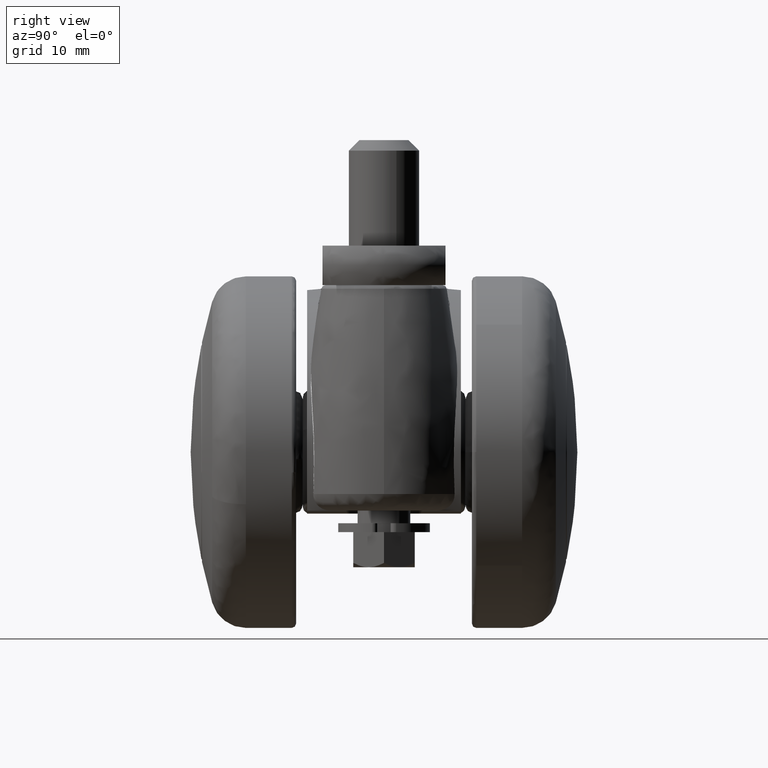
[diagram: clean part render]
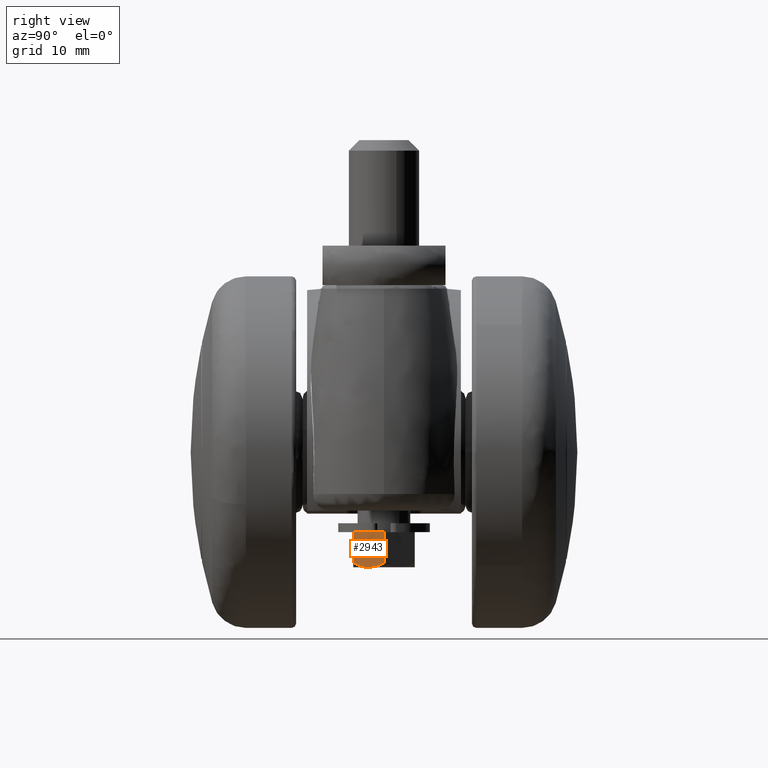
[diagram: same view with one face highlighted and labeled with its STEP entity id]
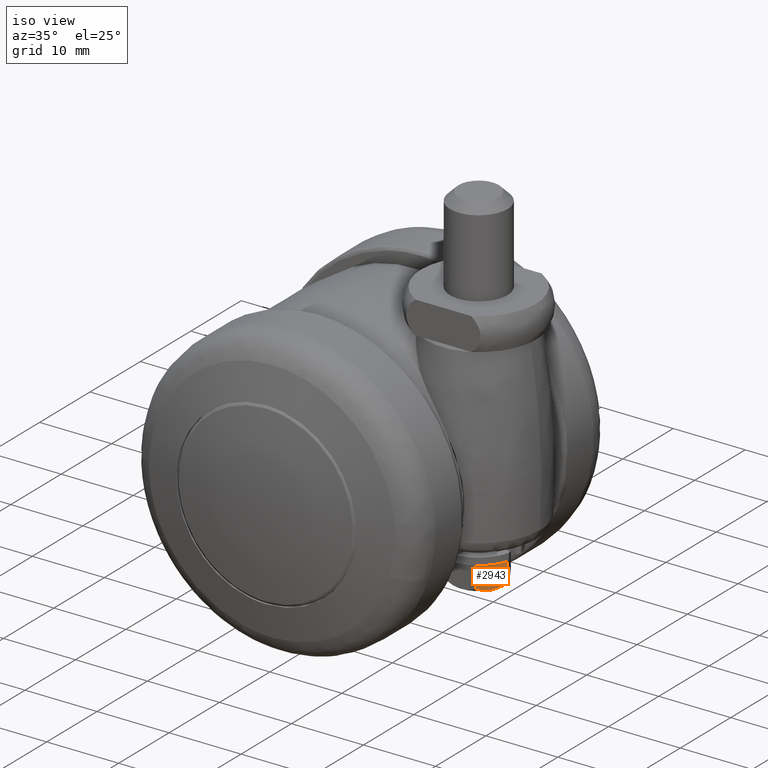
[diagram: same view with one face highlighted and labeled with its STEP entity id]
A machine part, right view. The second image highlights one B-rep face of the part: STEP entity #2943.
A second angle (iso view) of the same face is appended — the face is thin or edge-on in the first view.
In plain terms, the highlighted face is a freeform B-spline surface patch.
Its self-contained STEP definition (entity closure, byte-faithful):
#2513=CARTESIAN_POINT('',(18.031088956622749,-1.750000075131495,-13.100000000000000));
#2514=VERTEX_POINT('',#2513);
#2608=CARTESIAN_POINT('',(17.020726000000000,-3.500000000000000,-12.600000080112780));
#2609=VERTEX_POINT('',#2608);
#2624=CARTESIAN_POINT('',(17.020726000000000,-3.500000000000002,-12.600000080112780));
#2625=CARTESIAN_POINT('',(17.180439441748302,-3.223368212157872,-12.747486312930290));
#2626=CARTESIAN_POINT('',(17.343193984594262,-2.941469082854399,-12.871956210915730));
#2627=CARTESIAN_POINT('',(17.594515470652659,-2.506167512426530,-13.004246591578990));
#2628=CARTESIAN_POINT('',(17.679497903640929,-2.358973624952931,-13.039196158387480));
#2629=CARTESIAN_POINT('',(17.809158382581980,-2.134395094121087,-13.075069661579880));
#2630=CARTESIAN_POINT('',(17.852743053500870,-2.058904231819061,-13.084268721042200));
#2631=CARTESIAN_POINT('',(17.940700122305142,-1.906558124125612,-13.096704990283220));
#2632=CARTESIAN_POINT('',(17.985240112590709,-1.829412600190415,-13.099916904465170));
#2633=CARTESIAN_POINT('',(18.029922843816738,-1.752019841701092,-13.099999392500420));
#2634=CARTESIAN_POINT('',(18.030505923939032,-1.751009917333295,-13.099999923874771));
#2635=CARTESIAN_POINT('',(18.031088956622749,-1.750000075131495,-13.100000000000000));
#2636=B_SPLINE_CURVE_WITH_KNOTS('',3,(#2624,#2625,#2626,#2627,#2628,#2629,#2630,#2631,#2632,#2633,#2634,#2635),.UNSPECIFIED.,.F.,.U.,(4,2,2,2,2,4),(0.0,0.249999999999999,0.374999999999999,0.437499999999999,0.499999999999999,0.500826435451051),.UNSPECIFIED.);
#2637=EDGE_CURVE('',#2609,#2514,#2636,.T.);
#2656=CARTESIAN_POINT('',(19.041451999999900,-3.071924E-015,-12.600000000000000));
#2657=VERTEX_POINT('',#2656);
#2658=CARTESIAN_POINT('',(18.031088956622749,-1.750000075131495,-13.100000000000000));
#2659=CARTESIAN_POINT('',(18.206875615622700,-1.445528659165259,-13.099995888632460));
#2660=CARTESIAN_POINT('',(18.378348431460001,-1.148529038518740,-13.050474723980770));
#2661=CARTESIAN_POINT('',(18.630842964571180,-0.711195691053917,-12.918728452937790));
#2662=CARTESIAN_POINT('',(18.714408489217359,-0.566455960748259,-12.865177797755170));
#2663=CARTESIAN_POINT('',(18.879998418326501,-0.279645798518435,-12.742531339871141));
#2664=CARTESIAN_POINT('',(18.961297714491099,-0.138831290972090,-12.674017905104151));
#2665=CARTESIAN_POINT('',(19.041451999999900,-3.071924E-015,-12.600000000000000));
#2666=B_SPLINE_CURVE_WITH_KNOTS('',3,(#2658,#2659,#2660,#2661,#2662,#2663,#2664,#2665),.UNSPECIFIED.,.F.,.U.,(4,2,2,4),(0.500826434378236,0.749999999999999,0.874999999999999,1.0),.UNSPECIFIED.);
#2667=EDGE_CURVE('',#2514,#2657,#2666,.T.);
#2889=CARTESIAN_POINT('',(19.041451999999900,0.0,-9.100000000000000));
#2890=VERTEX_POINT('',#2889);
#2891=CARTESIAN_POINT('',(19.041451999999900,0.0,-9.100000000000000));
#2892=CARTESIAN_POINT('',(19.041451999999900,-3.071924E-015,-12.600000000000000));
#2893=QUASI_UNIFORM_CURVE('',1,(#2891,#2892),.UNSPECIFIED.,.F.,.U.);
#2894=EDGE_CURVE('',#2890,#2657,#2893,.T.);
#2914=CARTESIAN_POINT('',(19.142387380817571,0.174825202853751,-13.299800376706131));
#2915=CARTESIAN_POINT('',(16.919790528848839,-3.674825359315950,-13.299800376706131));
#2916=CARTESIAN_POINT('',(19.142387380817581,0.174825202853751,-8.900200481600759));
#2917=CARTESIAN_POINT('',(16.919790528848839,-3.674825359315950,-8.900200481600759));
#2918=B_SPLINE_SURFACE_WITH_KNOTS('',1,1,((#2914,#2916),(#2915,#2917)),.UNSPECIFIED.,.F.,.F.,.U.,(2,2),(2,2),(0.0,4.445193608516374),(0.0,4.399599895105366),.UNSPECIFIED.);
#2919=CARTESIAN_POINT('',(17.020726000000000,-3.500000000000000,-9.100000000000000));
#2920=VERTEX_POINT('',#2919);
#2921=CARTESIAN_POINT('',(17.020726000000000,-3.500000000000000,-9.100000000000000));
#2922=CARTESIAN_POINT('',(17.020726000000000,-3.500000000000000,-12.600000080112780));
#2923=QUASI_UNIFORM_CURVE('',1,(#2921,#2922),.UNSPECIFIED.,.F.,.U.);
#2924=EDGE_CURVE('',#2920,#2609,#2923,.T.);
#2925=ORIENTED_EDGE('',*,*,#2924,.T.);
#2926=ORIENTED_EDGE('',*,*,#2637,.T.);
#2927=ORIENTED_EDGE('',*,*,#2667,.T.);
#2928=ORIENTED_EDGE('',*,*,#2894,.F.);
#2929=CARTESIAN_POINT('',(18.608439285714201,-0.750000000000000,-9.100000000000000));
#2930=VERTEX_POINT('',#2929);
#2931=CARTESIAN_POINT('',(18.608439285714201,-0.750000000000000,-9.100000000000000));
#2932=CARTESIAN_POINT('',(19.041451999999900,0.0,-9.100000000000000));
#2933=QUASI_UNIFORM_CURVE('',1,(#2931,#2932),.UNSPECIFIED.,.F.,.U.);
#2934=EDGE_CURVE('',#2930,#2890,#2933,.T.);
#2935=ORIENTED_EDGE('',*,*,#2934,.F.);
#2936=CARTESIAN_POINT('',(17.020726000000000,-3.500000000000000,-9.100000000000000));
#2937=CARTESIAN_POINT('',(18.608439285714201,-0.750000000000000,-9.100000000000000));
#2938=QUASI_UNIFORM_CURVE('',1,(#2936,#2937),.UNSPECIFIED.,.F.,.U.);
#2939=EDGE_CURVE('',#2920,#2930,#2938,.T.);
#2940=ORIENTED_EDGE('',*,*,#2939,.F.);
#2941=EDGE_LOOP('',(#2925,#2926,#2927,#2928,#2935,#2940));
#2942=FACE_OUTER_BOUND('',#2941,.T.);
#2943=ADVANCED_FACE('',(#2942),#2918,.F.);